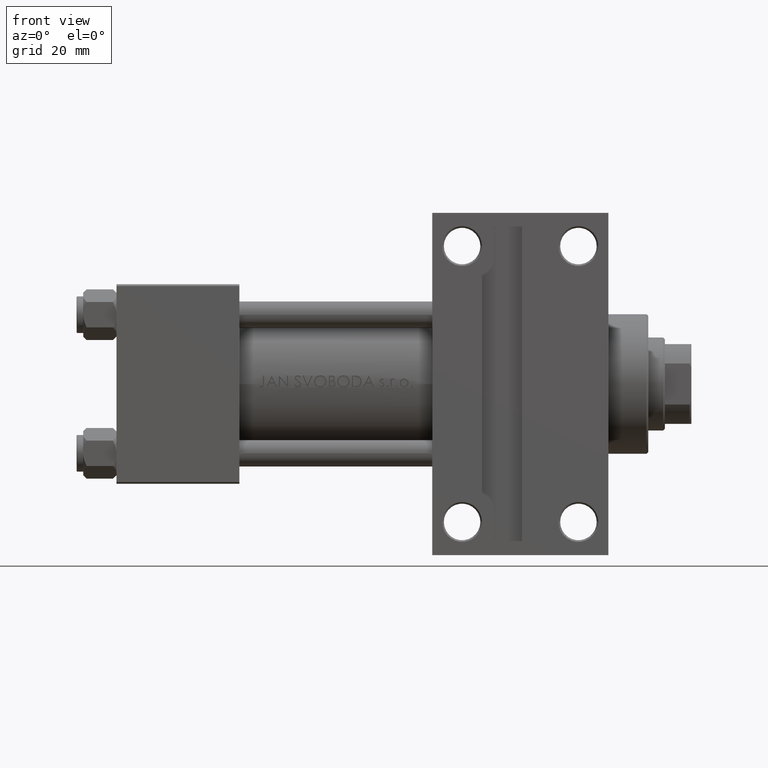
[diagram: clean part render]
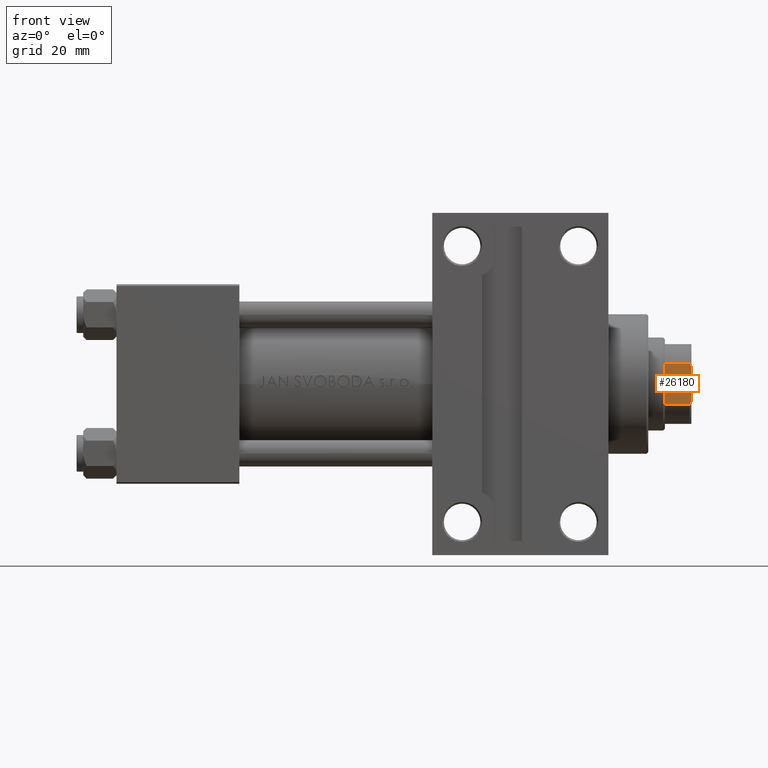
[diagram: same view with one face highlighted and labeled with its STEP entity id]
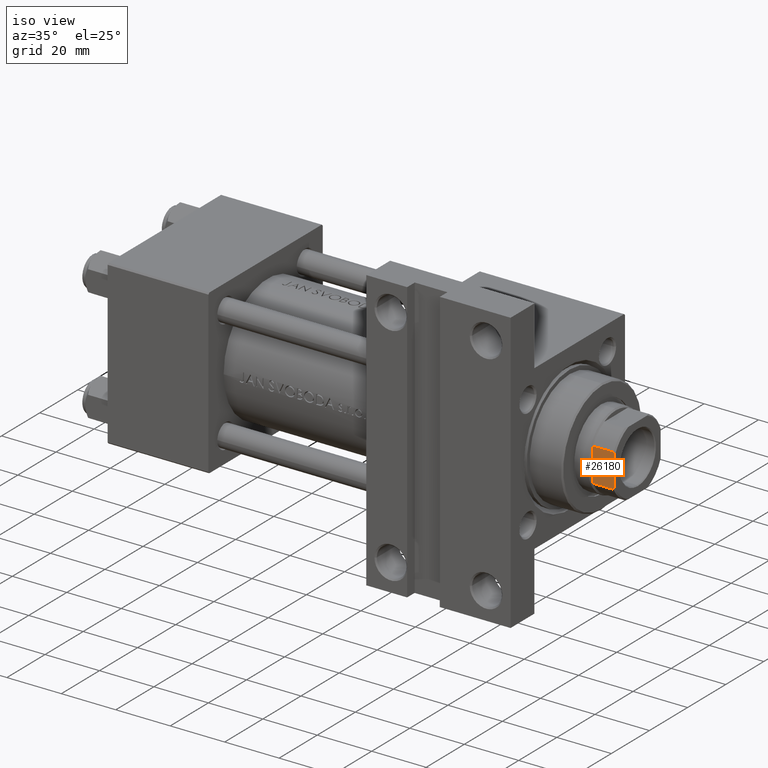
[diagram: same view with one face highlighted and labeled with its STEP entity id]
A machine part, front view. The second image highlights one B-rep face of the part: STEP entity #26180.
A second angle (iso view) of the same face is appended — the face is thin or edge-on in the first view.
In plain terms, the highlighted planar face has unit normal (0, 1, 0).
Its self-contained STEP definition (entity closure, byte-faithful):
#455 = VECTOR ( 'NONE', #23453, 1000.000000000000000 ) ;
#1904 = PLANE ( 'NONE',  #18783 ) ;
#2465 = EDGE_CURVE ( 'NONE', #23912, #29911, #43615, .T. ) ;
#2555 = CARTESIAN_POINT ( 'NONE',  ( 6.184658438426495763, 11.99999999999999822, -0.001000000000001000089 ) ) ;
#3256 = CARTESIAN_POINT ( 'NONE',  ( 6.184658438426494875, 11.99999999999999645, 128.0000000000000853 ) ) ;
#3389 = EDGE_CURVE ( 'NONE', #17963, #29911, #37119, .T. ) ;
#4377 = ORIENTED_EDGE ( 'NONE', *, *, #2465, .T. ) ;
#6318 = FACE_OUTER_BOUND ( 'NONE', #42417, .T. ) ;
#7254 = CARTESIAN_POINT ( 'NONE',  ( -5.794808544282238572, 11.99999999999999645, 135.6785991435214100 ) ) ;
#9348 = VERTEX_POINT ( 'NONE', #23694 ) ;
#13958 = DIRECTION ( 'NONE',  ( 0.000000000000000000, -0.000000000000000000, -1.000000000000000000 ) ) ;
#14079 = VERTEX_POINT ( 'NONE', #3256 ) ;
#16415 = VECTOR ( 'NONE', #18160, 1000.000000000000000 ) ;
#16480 = EDGE_CURVE ( 'NONE', #17963, #9348, #40803, .T. ) ;
#17104 = ORIENTED_EDGE ( 'NONE', *, *, #3389, .F. ) ;
#17293 = CARTESIAN_POINT ( 'NONE',  ( 5.000000000000042633, 11.99999999999999645, 136.0000000000000000 ) ) ;
#17542 = CARTESIAN_POINT ( 'NONE',  ( 5.400255697127817278, 11.99999999999999645, 135.8460555011047006 ) ) ;
#17880 = CARTESIAN_POINT ( 'NONE',  ( -6.184658438426496652, 11.99999999999999645, 135.5000000000000000 ) ) ;
#17963 = VERTEX_POINT ( 'NONE', #22179 ) ;
#18035 = ORIENTED_EDGE ( 'NONE', *, *, #18501, .T. ) ;
#18160 = DIRECTION ( 'NONE',  ( -1.000000000000000000, -0.000000000000000000, -0.000000000000000000 ) ) ;
#18501 = EDGE_CURVE ( 'NONE', #34181, #23912, #42446, .T. ) ;
#18783 = AXIS2_PLACEMENT_3D ( 'NONE', #35934, #39159, #13958 ) ;
#22179 = CARTESIAN_POINT ( 'NONE',  ( 5.000000000000042633, 11.99999999999999645, 136.0000000000000000 ) ) ;
#23453 = DIRECTION ( 'NONE',  ( -0.000000000000000000, -0.000000000000000000, 1.000000000000000000 ) ) ;
#23694 = CARTESIAN_POINT ( 'NONE',  ( 6.184658438426495763, 11.99999999999999822, 135.5000000000000284 ) ) ;
#23912 = VERTEX_POINT ( 'NONE', #36815 ) ;
#24704 = ORIENTED_EDGE ( 'NONE', *, *, #26223, .T. ) ;
#25537 = CARTESIAN_POINT ( 'NONE',  ( -12.00000000000000000, 11.99999999999999645, 128.0000000000000000 ) ) ;
#25943 = ORIENTED_EDGE ( 'NONE', *, *, #16480, .T. ) ;
#26180 = ADVANCED_FACE ( 'NONE', ( #6318 ), #1904, .F. ) ;
#26223 = EDGE_CURVE ( 'NONE', #14079, #34181, #29259, .T. ) ;
#28985 = CARTESIAN_POINT ( 'NONE',  ( -12.00000000000000000, 11.99999999999999645, 136.0000000000000000 ) ) ;
#29259 = LINE ( 'NONE', #25537, #16415 ) ;
#29911 = VERTEX_POINT ( 'NONE', #31677 ) ;
#31481 = CARTESIAN_POINT ( 'NONE',  ( -6.184658438426494875, 11.99999999999999645, 128.0000000000000853 ) ) ;
#31677 = CARTESIAN_POINT ( 'NONE',  ( -4.999999999999987566, 11.99999999999999645, 136.0000000000000000 ) ) ;
#32342 = CARTESIAN_POINT ( 'NONE',  ( 5.794808544282261664, 11.99999999999999645, 135.6785991435214385 ) ) ;
#32586 = CARTESIAN_POINT ( 'NONE',  ( 6.184658438426495763, 11.99999999999999822, 135.5000000000000284 ) ) ;
#34181 = VERTEX_POINT ( 'NONE', #31481 ) ;
#35934 = CARTESIAN_POINT ( 'NONE',  ( -12.00000000000000000, 11.99999999999999645, 136.0000000000000000 ) ) ;
#36661 = EDGE_CURVE ( 'NONE', #14079, #9348, #40791, .T. ) ;
#36815 = CARTESIAN_POINT ( 'NONE',  ( -6.184658438426496652, 11.99999999999999645, 135.5000000000000000 ) ) ;
#37119 = LINE ( 'NONE', #28985, #37854 ) ;
#37355 = CARTESIAN_POINT ( 'NONE',  ( -5.400255697127783527, 11.99999999999999645, 135.8460555011047006 ) ) ;
#37854 = VECTOR ( 'NONE', #44025, 1000.000000000000000 ) ;
#39159 = DIRECTION ( 'NONE',  ( 0.000000000000000000, -1.000000000000000000, 0.000000000000000000 ) ) ;
#40791 = LINE ( 'NONE', #2555, #44198 ) ;
#40803 = B_SPLINE_CURVE_WITH_KNOTS ( 'NONE', 3,
 ( #17293, #17542, #32342, #32586 ),
 .UNSPECIFIED., .F., .F.,
 ( 4, 4 ),
 ( 8.673617379884035472E-19, 0.001285852097146082717 ),
 .UNSPECIFIED. ) ;
#42417 = EDGE_LOOP ( 'NONE', ( #17104, #25943, #44246, #24704, #18035, #4377 ) ) ;
#42446 = LINE ( 'NONE', #45884, #455 ) ;
#43615 = B_SPLINE_CURVE_WITH_KNOTS ( 'NONE', 3,
 ( #17880, #7254, #37355, #44266 ),
 .UNSPECIFIED., .F., .F.,
 ( 4, 4 ),
 ( 0.000000000000000000, 0.001285852097146142998 ),
 .UNSPECIFIED. ) ;
#44025 = DIRECTION ( 'NONE',  ( -1.000000000000000000, -0.000000000000000000, -0.000000000000000000 ) ) ;
#44198 = VECTOR ( 'NONE', #48408, 1000.000000000000000 ) ;
#44246 = ORIENTED_EDGE ( 'NONE', *, *, #36661, .F. ) ;
#44266 = CARTESIAN_POINT ( 'NONE',  ( -4.999999999999987566, 11.99999999999999645, 136.0000000000000000 ) ) ;
#45884 = CARTESIAN_POINT ( 'NONE',  ( -6.184658438426496652, 11.99999999999999645, -0.001000000000001000089 ) ) ;
#48408 = DIRECTION ( 'NONE',  ( -0.000000000000000000, -0.000000000000000000, 1.000000000000000000 ) ) ;